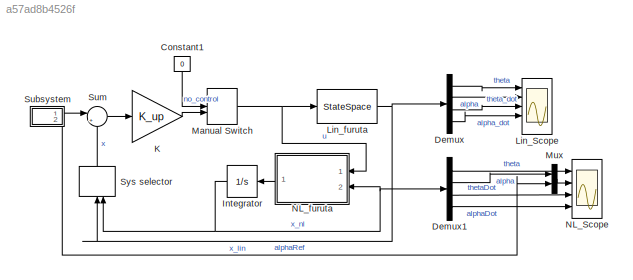
MODEL slx_a57ad8b4526f
KIND model
CONFIG AbsTol = 1e-9
CONFIG EnableMultiTasking = off
CONFIG FixedStep = auto
CONFIG MaxStep = 0.001
CONFIG MinStep = auto
CONFIG RelTol = 1e-9
CONFIG SampleTimeConstraint = Unconstrained
CONFIG SolverName = ode45
CONFIG StartTime = 0.0
CONFIG StopTime = 1.1
BLOCK [Constant] Constant1
  NameLocation = left
  Value = 0
BLOCK [Demux] Demux
  Ports = [1, 4]
BLOCK [Demux] Demux1
  Ports = [1, 4]
BLOCK [Integrator] Integrator
  InitialCondition = x0
  NameLocation = top
  Ports = [1, 1]
BLOCK [Gain] K
  Gain = K_up
  Multiplication = Matrix(K*u) (u vector)
BLOCK [Scope] Lin_Scope
  Floating = off
  NameLocation = top
  NumInputPorts = 5
  Ports = [5]
  ScopeSpecificationString = Simulink.scopes.TimeScopeBlockCfg('CurrentConfiguration', extmgr.ConfigurationSet(extmgr.Configuration('Core','General UI',true),extmgr.Configuration('Core','Source UI',true),extmgr.Configuration('Sources','WiredSimulink',true,'DataLoggingVariableName','ScopeData1'),extmgr.Configuration('Visuals','Time Domain',true,'SerializedDisplays',{struct('MinYLimReal','-12.71482','MaxYLimReal','9.50794','YLa...<+2093ch>
BLOCK [StateSpace] Lin_furuta
  A = A_up
  B = B_up
  C = eye(4)
  Commented = on
  D = zeros(4,1)
  InitialCondition = x0
  Ports = [1, 1]
BLOCK [ManualSwitch] Manual Switch
  CurrentSetting = 0
BLOCK [Mux] Mux
  DisplayOption = bar
  Inputs = 2
  Ports = [2, 1]
BLOCK [Scope] NL_Scope
  Floating = off
  NameLocation = top
  NumInputPorts = 4
  Ports = [4]
  ScopeSpecificationString = Simulink.scopes.TimeScopeBlockCfg('CurrentConfiguration', extmgr.ConfigurationSet(extmgr.Configuration('Core','General UI',true),extmgr.Configuration('Core','Source UI',true),extmgr.Configuration('Sources','WiredSimulink',true,'DataLoggingVariableName','ScopeData1'),extmgr.Configuration('Visuals','Time Domain',true,'SerializedDisplays',{struct('MinYLimReal','-4123.80106','MaxYLimReal','37108.44546...<+4130ch>
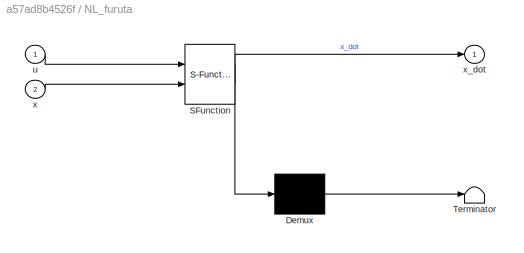
BLOCK [SubSystem] NL_furuta
  ErrorFcn = Stateflow.Translate.translate
  PermitHierarchicalResolution = ExplicitOnly
  Ports = [2, 1]
  RequestExecContextInheritance = off
  SFBlockType = MATLAB Function
  TreatAsAtomicUnit = on
BLOCK [Demux] NL_furuta/ Demux 
  Outputs = 1
  Ports = [1, 1]
BLOCK [S-Function] NL_furuta/ SFunction 
  EnableBusSupport = on
  FunctionName = sf_sfun
  PortCounts = [2 2]
  Ports = [2, 2]
  SFcnIsStateOwnerBlock = off
  SFunctionDeploymentMode = off
  Tag = Stateflow S-Function 2
BLOCK [Terminator] NL_furuta/ Terminator 
BLOCK [Inport] NL_furuta/u
BLOCK [Inport] NL_furuta/x
  Port = 2
BLOCK [Outport] NL_furuta/x_dot
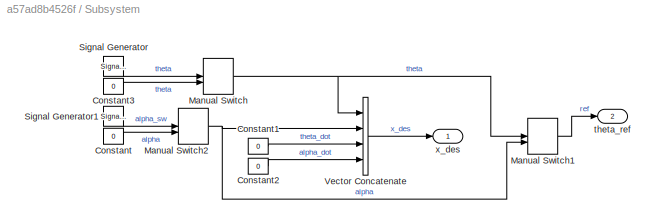
BLOCK [SubSystem] Subsystem
  PortSchema = {"entries":[{"content":{"sides":[{"content":{"connectorIds":[]},"type":"ConnectorPlacement.EquallySpacedRectSide","uuid":"c057468e-68cb-4a4b-9ead-048d1f61513c"},{"content":{"connectorIds":["Out1"],"side":"RIGHT"},"type":"ConnectorPlacement.EquallySpacedRectSide","uuid":"4c06bb7f-fdee-4161-ab60-9c40ed3a53b2"},{"content":{"connectorIds":[],"side":"TOP"},"type":"ConnectorPlacement.EquallySpacedRectSi...<+385ch>
  Ports = [0, 2]
  RequestExecContextInheritance = off
BLOCK [Constant] Subsystem/Constant
  Value = 0
BLOCK [Constant] Subsystem/Constant1
  Value = 0
BLOCK [Constant] Subsystem/Constant2
  Value = 0
BLOCK [Constant] Subsystem/Constant3
  Value = 0
BLOCK [ManualSwitch] Subsystem/Manual Switch
  CurrentSetting = 0
BLOCK [ManualSwitch] Subsystem/Manual Switch1
  CurrentSetting = 0
BLOCK [ManualSwitch] Subsystem/Manual Switch2
  CurrentSetting = 0
BLOCK [SignalGenerator] Subsystem/Signal Generator
  Amplitude = deg2rad(90)
  Frequency = (2*pi)
  Ports = [0, 1]
  Units = rad/sec
  WaveForm = square
BLOCK [SignalGenerator] Subsystem/Signal Generator1
  Amplitude = deg2rad(40)
  Frequency = (2*pi)
  Ports = [0, 1]
  Units = rad/sec
  WaveForm = square
BLOCK [Concatenate] Subsystem/Vector Concatenate
  NumInputs = 4
  Ports = [4, 1]
BLOCK [Outport] Subsystem/theta_ref
  Port = 2
BLOCK [Outport] Subsystem/x_des
BLOCK [Sum] Sum
  Inputs = |+-
  Ports = [2, 1]
BLOCK [ManualSwitch] Sys selector
  CurrentSetting = 0
  NameLocation = right
LINE Constant1:1 -> Manual Switch:1
LINE Demux1:1 -> NL_Scope:1
LINE Demux1:2 -> Mux:1
LINE Demux1:3 -> NL_Scope:3
LINE Demux1:4 -> NL_Scope:4
LINE Demux:1 -> Lin_Scope:1
LINE Demux:2 -> Lin_Scope:2
LINE Demux:3 -> Lin_Scope:3
LINE Demux:4 -> Lin_Scope:4
NET Integrator:1 -> Demux1:1, NL_furuta:2, Sys selector:2
LINE K:1 -> Manual Switch:2
NET Lin_furuta:1 -> Demux:1, Sys selector:1
NET Manual Switch:1 -> Lin_furuta:1, NL_furuta:1
LINE Mux:1 -> NL_Scope:2
LINE NL_furuta:1 -> Integrator:1
LINE Subsystem/Constant1:1 -> Subsystem/Vector Concatenate:3
LINE Subsystem/Constant2:1 -> Subsystem/Vector Concatenate:4
LINE Subsystem/Constant3:1 -> Subsystem/Manual Switch:2
LINE Subsystem/Constant:1 -> Subsystem/Manual Switch2:2
LINE Subsystem/Manual Switch1:1 -> Subsystem/theta_ref:1
NET Subsystem/Manual Switch2:1 -> Subsystem/Manual Switch1:2, Subsystem/Vector Concatenate:2
NET Subsystem/Manual Switch:1 -> Subsystem/Manual Switch1:1, Subsystem/Vector Concatenate:1
LINE Subsystem/Signal Generator1:1 -> Subsystem/Manual Switch2:1
LINE Subsystem/Signal Generator:1 -> Subsystem/Manual Switch:1
LINE Subsystem/Vector Concatenate:1 -> Subsystem/x_des:1
LINE Subsystem:1 -> Sum:1
LINE Subsystem:2 -> Mux:2
LINE Sum:1 -> K:1
LINE Sys selector:1 -> Sum:2
note: NET lines group one-source signal fan-out (src -> all destinations, sorted); 1:1 wires keep LINE
CHART NL_furuta states=1 transitions=1
  STATE_LABEL 'eML_blk_kernel()'
  STATE_LABEL 'SCRIPT:\nfunction x_dot = furuta(u,x)\n% Furuta pendulum \n\n% renaming state in compliance with altready written code\n\n% th = x(1); % not used variable, saving calculations\n% a = x(2); % Downward position\na = x(2)+pi; % Upward position\nth_d = x(3);\na_d = x(4);\n\n% assigning values to symbolic values \n\nRm = 2.6; Kt = 7.68e-3; Em = 0.69; Km = 7.68e-3; Kg = 70;\nEg = 0.9; mp = 0.127; lp = 0.1556; Jp = 0.0...<+629ch>'
CHART  states=0 transitions=0
